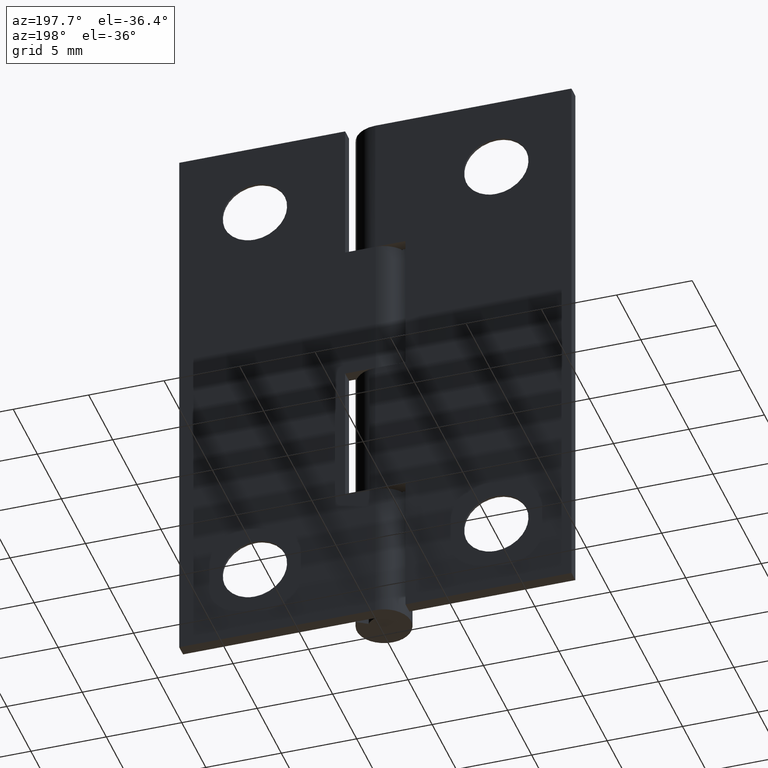
[diagram: clean part render]
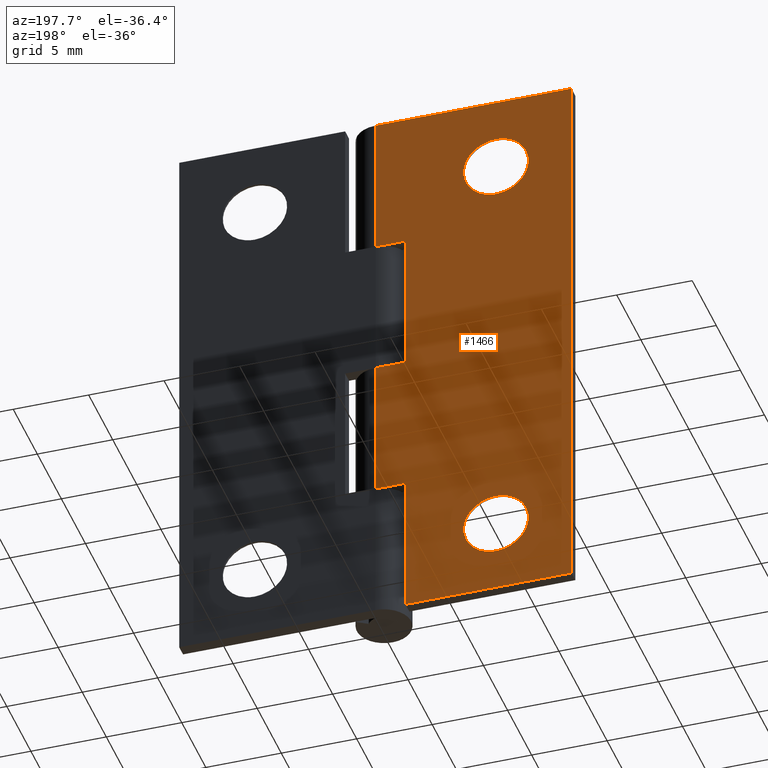
[diagram: same view with one face highlighted and labeled with its STEP entity id]
A machine part, auxiliary view. The second image highlights one B-rep face of the part: STEP entity #1466.
In plain terms, the highlighted face is a freeform B-spline surface patch.
Its self-contained STEP definition (entity closure, byte-faithful):
#534=CARTESIAN_POINT('',(-5.865029518324235,1.799999000000000,33.253773604563492));
#535=VERTEX_POINT('',#534);
#541=CARTESIAN_POINT('',(-8.0,1.799999000000000,30.850000000000001));
#542=VERTEX_POINT('',#541);
#543=CARTESIAN_POINT('',(-5.865029518324235,1.799999000000001,33.253773604563499));
#544=CARTESIAN_POINT('',(-5.850000000000001,1.799999000000000,33.127331857303616));
#545=CARTESIAN_POINT('',(-5.850000000000001,1.799999000000000,33.0));
#546=CARTESIAN_POINT('',(-5.850000000000001,1.799999000000000,30.850000000000001));
#547=CARTESIAN_POINT('',(-8.0,1.799999000000000,30.850000000000001));
#555=(BOUNDED_CURVE()B_SPLINE_CURVE(2,(#543,#544,#545,#546,#547),.UNSPECIFIED.,.F.,.U.)B_SPLINE_CURVE_WITH_KNOTS((3,2,3),(0.229562473507497,0.250000000000000,0.500000000000000),.UNSPECIFIED.)CURVE()GEOMETRIC_REPRESENTATION_ITEM()RATIONAL_B_SPLINE_CURVE((0.956026754171916,0.976055948324102,1.0,0.707106781186547,1.0))REPRESENTATION_ITEM(''));
#556=EDGE_CURVE('',#535,#542,#555,.T.);
#558=CARTESIAN_POINT('',(-10.145989816604599,1.799999000000000,32.868745639960650));
#559=VERTEX_POINT('',#558);
#560=CARTESIAN_POINT('',(-8.0,1.799999000000000,30.850000000000001));
#561=CARTESIAN_POINT('',(-10.022518043772834,1.799999000000000,30.850000000000005));
#562=CARTESIAN_POINT('',(-10.145989816604601,1.799999000000001,32.868745639960650));
#570=(BOUNDED_CURVE()B_SPLINE_CURVE(2,(#560,#561,#562),.UNSPECIFIED.,.F.,.U.)B_SPLINE_CURVE_WITH_KNOTS((3,3),(0.500000000000000,0.739332962235632),.UNSPECIFIED.)CURVE()GEOMETRIC_REPRESENTATION_ITEM()RATIONAL_B_SPLINE_CURVE((1.0,0.719603993290589,0.976072041659622))REPRESENTATION_ITEM(''));
#571=EDGE_CURVE('',#542,#559,#570,.T.);
#605=CARTESIAN_POINT('',(-8.0,1.799999000000000,35.149999999999999));
#606=VERTEX_POINT('',#605);
#607=CARTESIAN_POINT('',(-10.145989816604601,1.799999000000001,32.868745639960650));
#608=CARTESIAN_POINT('',(-10.150000000000002,1.799999000000000,32.934311558868515));
#609=CARTESIAN_POINT('',(-10.150000000000000,1.799999000000000,33.0));
#610=CARTESIAN_POINT('',(-10.149999999999999,1.799999000000000,35.149999999999999));
#611=CARTESIAN_POINT('',(-8.0,1.799999000000000,35.149999999999999));
#619=(BOUNDED_CURVE()B_SPLINE_CURVE(2,(#607,#608,#609,#610,#611),.UNSPECIFIED.,.F.,.U.)B_SPLINE_CURVE_WITH_KNOTS((3,2,3),(0.739332962235631,0.750000000000000,1.0),.UNSPECIFIED.)CURVE()GEOMETRIC_REPRESENTATION_ITEM()RATIONAL_B_SPLINE_CURVE((0.976072041659620,0.987502787895957,1.0,0.707106781186547,1.0))REPRESENTATION_ITEM(''));
#620=EDGE_CURVE('',#559,#606,#619,.T.);
#622=CARTESIAN_POINT('',(-8.0,1.799999000000000,35.149999999999999));
#623=CARTESIAN_POINT('',(-6.090424769297270,1.799999000000001,35.150000000000006));
#624=CARTESIAN_POINT('',(-5.865029518324235,1.799999000000000,33.253773604563492));
#632=(BOUNDED_CURVE()B_SPLINE_CURVE(2,(#622,#623,#624),.UNSPECIFIED.,.F.,.U.)B_SPLINE_CURVE_WITH_KNOTS((3,3),(0.0,0.229562473507496),.UNSPECIFIED.)CURVE()GEOMETRIC_REPRESENTATION_ITEM()RATIONAL_B_SPLINE_CURVE((1.0,0.731050832862446,0.956026754171916))REPRESENTATION_ITEM(''));
#633=EDGE_CURVE('',#606,#535,#632,.T.);
#878=CARTESIAN_POINT('',(-5.865029518324235,1.799999000000000,5.253773604563492));
#879=VERTEX_POINT('',#878);
#885=CARTESIAN_POINT('',(-8.0,1.799999000000000,2.850000000000000));
#886=VERTEX_POINT('',#885);
#887=CARTESIAN_POINT('',(-5.865029518324235,1.799999000000000,5.253773604563493));
#888=CARTESIAN_POINT('',(-5.850000000000001,1.799999000000000,5.127331857303612));
#889=CARTESIAN_POINT('',(-5.850000000000001,1.799999000000000,5.0));
#890=CARTESIAN_POINT('',(-5.850000000000001,1.799999000000000,2.850000000000000));
#891=CARTESIAN_POINT('',(-8.0,1.799999000000000,2.850000000000000));
#899=(BOUNDED_CURVE()B_SPLINE_CURVE(2,(#887,#888,#889,#890,#891),.UNSPECIFIED.,.F.,.U.)B_SPLINE_CURVE_WITH_KNOTS((3,2,3),(0.229562473507497,0.250000000000000,0.500000000000000),.UNSPECIFIED.)CURVE()GEOMETRIC_REPRESENTATION_ITEM()RATIONAL_B_SPLINE_CURVE((0.956026754171917,0.976055948324102,1.0,0.707106781186547,1.0))REPRESENTATION_ITEM(''));
#900=EDGE_CURVE('',#879,#886,#899,.T.);
#902=CARTESIAN_POINT('',(-10.145989816604599,1.799999000000001,4.868745639960645));
#903=VERTEX_POINT('',#902);
#904=CARTESIAN_POINT('',(-8.0,1.799999000000000,2.850000000000000));
#905=CARTESIAN_POINT('',(-10.022518043772807,1.799999000000001,2.849999999999999));
#906=CARTESIAN_POINT('',(-10.145989816604603,1.799999000000000,4.868745639960645));
#914=(BOUNDED_CURVE()B_SPLINE_CURVE(2,(#904,#905,#906),.UNSPECIFIED.,.F.,.U.)B_SPLINE_CURVE_WITH_KNOTS((3,3),(0.500000000000000,0.739332962235630),.UNSPECIFIED.)CURVE()GEOMETRIC_REPRESENTATION_ITEM()RATIONAL_B_SPLINE_CURVE((1.0,0.719603993290591,0.976072041659617))REPRESENTATION_ITEM(''));
#915=EDGE_CURVE('',#886,#903,#914,.T.);
#949=CARTESIAN_POINT('',(-8.0,1.799999000000000,7.150000000000000));
#950=VERTEX_POINT('',#949);
#951=CARTESIAN_POINT('',(-10.145989816604603,1.799999000000001,4.868745639960645));
#952=CARTESIAN_POINT('',(-10.149999999999999,1.799999000000000,4.934311558868512));
#953=CARTESIAN_POINT('',(-10.150000000000000,1.799999000000000,5.0));
#954=CARTESIAN_POINT('',(-10.149999999999999,1.799999000000000,7.150000000000003));
#955=CARTESIAN_POINT('',(-8.0,1.799999000000000,7.150000000000000));
#963=(BOUNDED_CURVE()B_SPLINE_CURVE(2,(#951,#952,#953,#954,#955),.UNSPECIFIED.,.F.,.U.)B_SPLINE_CURVE_WITH_KNOTS((3,2,3),(0.739332962235631,0.750000000000000,1.0),.UNSPECIFIED.)CURVE()GEOMETRIC_REPRESENTATION_ITEM()RATIONAL_B_SPLINE_CURVE((0.976072041659619,0.987502787895957,1.0,0.707106781186547,1.0))REPRESENTATION_ITEM(''));
#964=EDGE_CURVE('',#903,#950,#963,.T.);
#966=CARTESIAN_POINT('',(-8.0,1.799999000000000,7.150000000000000));
#967=CARTESIAN_POINT('',(-6.090424769297265,1.799999000000001,7.150000000000001));
#968=CARTESIAN_POINT('',(-5.865029518324235,1.799999000000000,5.253773604563493));
#976=(BOUNDED_CURVE()B_SPLINE_CURVE(2,(#966,#967,#968),.UNSPECIFIED.,.F.,.U.)B_SPLINE_CURVE_WITH_KNOTS((3,3),(0.0,0.229562473507497),.UNSPECIFIED.)CURVE()GEOMETRIC_REPRESENTATION_ITEM()RATIONAL_B_SPLINE_CURVE((1.0,0.731050832862445,0.956026754171917))REPRESENTATION_ITEM(''));
#977=EDGE_CURVE('',#950,#879,#976,.T.);
#988=CARTESIAN_POINT('',(-2.0,1.799998999999940,19.0));
#989=VERTEX_POINT('',#988);
#997=CARTESIAN_POINT('',(-2.0,1.799998999999940,28.500000000000000));
#998=VERTEX_POINT('',#997);
#999=CARTESIAN_POINT('',(-2.0,1.799998999999940,19.0));
#1000=CARTESIAN_POINT('',(-2.0,1.799998999999940,28.500000000000000));
#1001=QUASI_UNIFORM_CURVE('',1,(#999,#1000),.UNSPECIFIED.,.F.,.U.);
#1002=EDGE_CURVE('',#989,#998,#1001,.T.);
#1024=CARTESIAN_POINT('',(0.001897366339662,1.799998999999940,19.0));
#1025=VERTEX_POINT('',#1024);
#1026=CARTESIAN_POINT('',(0.001897366339662,1.799998999999940,19.0));
#1027=CARTESIAN_POINT('',(-2.0,1.799998999999940,19.0));
#1028=QUASI_UNIFORM_CURVE('',1,(#1026,#1027),.UNSPECIFIED.,.F.,.U.);
#1029=EDGE_CURVE('',#1025,#989,#1028,.T.);
#1096=CARTESIAN_POINT('',(0.001897366339662,1.799998999999940,28.500000000000000));
#1097=VERTEX_POINT('',#1096);
#1151=CARTESIAN_POINT('',(-2.0,1.799998999999940,28.500000000000000));
#1152=CARTESIAN_POINT('',(0.001897366339662,1.799998999999940,28.500000000000000));
#1153=QUASI_UNIFORM_CURVE('',1,(#1151,#1152),.UNSPECIFIED.,.F.,.U.);
#1154=EDGE_CURVE('',#998,#1097,#1153,.T.);
#1164=CARTESIAN_POINT('',(-2.0,1.799998999999940,0.0));
#1165=VERTEX_POINT('',#1164);
#1173=CARTESIAN_POINT('',(-2.0,1.799998999999940,9.499999999999901));
#1174=VERTEX_POINT('',#1173);
#1175=CARTESIAN_POINT('',(-2.0,1.799998999999940,0.0));
#1176=CARTESIAN_POINT('',(-2.0,1.799998999999940,9.499999999999901));
#1177=QUASI_UNIFORM_CURVE('',1,(#1175,#1176),.UNSPECIFIED.,.F.,.U.);
#1178=EDGE_CURVE('',#1165,#1174,#1177,.T.);
#1202=CARTESIAN_POINT('',(0.001897366339662,1.799998999999940,9.499999999999901));
#1203=VERTEX_POINT('',#1202);
#1257=CARTESIAN_POINT('',(-2.0,1.799998999999940,9.499999999999901));
#1258=CARTESIAN_POINT('',(0.001897366339662,1.799998999999940,9.499999999999901));
#1259=QUASI_UNIFORM_CURVE('',1,(#1257,#1258),.UNSPECIFIED.,.F.,.U.);
#1260=EDGE_CURVE('',#1174,#1203,#1259,.T.);
#1300=CARTESIAN_POINT('',(0.001897366339662,1.799999000000000,37.999992999999897));
#1301=VERTEX_POINT('',#1300);
#1321=CARTESIAN_POINT('',(-13.0,1.799999000000000,37.999992999999897));
#1322=VERTEX_POINT('',#1321);
#1323=CARTESIAN_POINT('',(-13.0,1.799999000000000,37.999992999999897));
#1324=CARTESIAN_POINT('',(0.001897366339662,1.799999000000000,37.999992999999897));
#1325=QUASI_UNIFORM_CURVE('',1,(#1323,#1324),.UNSPECIFIED.,.F.,.U.);
#1326=EDGE_CURVE('',#1322,#1301,#1325,.T.);
#1350=CARTESIAN_POINT('',(-13.0,1.799999000000000,0.0));
#1351=VERTEX_POINT('',#1350);
#1363=CARTESIAN_POINT('',(-13.0,1.799999000000000,37.999992999999897));
#1364=CARTESIAN_POINT('',(-13.0,1.799999000000000,0.0));
#1365=QUASI_UNIFORM_CURVE('',1,(#1363,#1364),.UNSPECIFIED.,.F.,.U.);
#1366=EDGE_CURVE('',#1322,#1351,#1365,.T.);
#1376=CARTESIAN_POINT('',(-13.0,1.799999000000000,0.0));
#1377=CARTESIAN_POINT('',(-2.0,1.799998999999940,0.0));
#1378=QUASI_UNIFORM_CURVE('',1,(#1376,#1377),.UNSPECIFIED.,.F.,.U.);
#1379=EDGE_CURVE('',#1351,#1165,#1378,.T.);
#1429=CARTESIAN_POINT('',(-13.649444748248470,1.799999000000000,-1.898099440935968));
#1430=CARTESIAN_POINT('',(-13.649444748248470,1.799999000000000,39.898090742203813));
#1431=CARTESIAN_POINT('',(0.651342463326190,1.799999000000000,-1.898099440935968));
#1432=CARTESIAN_POINT('',(0.651342463326190,1.799999000000000,39.898090742203813));
#1433=B_SPLINE_SURFACE_WITH_KNOTS('',1,1,((#1429,#1431),(#1430,#1432)),.UNSPECIFIED.,.F.,.F.,.U.,(2,2),(2,2),(0.0,41.796190183139778),(0.0,14.300787211574660),.UNSPECIFIED.);
#1434=CARTESIAN_POINT('',(0.001897366339662,1.799999000000000,37.999992999999897));
#1435=CARTESIAN_POINT('',(0.001897366339662,1.799998999999940,28.500000000000000));
#1436=QUASI_UNIFORM_CURVE('',1,(#1434,#1435),.UNSPECIFIED.,.F.,.U.);
#1437=EDGE_CURVE('',#1301,#1097,#1436,.T.);
#1438=ORIENTED_EDGE('',*,*,#1437,.T.);
#1439=ORIENTED_EDGE('',*,*,#1154,.F.);
#1440=ORIENTED_EDGE('',*,*,#1002,.F.);
#1441=ORIENTED_EDGE('',*,*,#1029,.F.);
#1442=CARTESIAN_POINT('',(0.001897366339662,1.799998999999940,19.0));
#1443=CARTESIAN_POINT('',(0.001897366339662,1.799998999999940,9.499999999999901));
#1444=QUASI_UNIFORM_CURVE('',1,(#1442,#1443),.UNSPECIFIED.,.F.,.U.);
#1445=EDGE_CURVE('',#1025,#1203,#1444,.T.);
#1446=ORIENTED_EDGE('',*,*,#1445,.T.);
#1447=ORIENTED_EDGE('',*,*,#1260,.F.);
#1448=ORIENTED_EDGE('',*,*,#1178,.F.);
#1449=ORIENTED_EDGE('',*,*,#1379,.F.);
#1450=ORIENTED_EDGE('',*,*,#1366,.F.);
#1451=ORIENTED_EDGE('',*,*,#1326,.T.);
#1452=EDGE_LOOP('',(#1438,#1439,#1440,#1441,#1446,#1447,#1448,#1449,#1450,#1451));
#1453=FACE_OUTER_BOUND('',#1452,.T.);
#1454=ORIENTED_EDGE('',*,*,#915,.F.);
#1455=ORIENTED_EDGE('',*,*,#900,.F.);
#1456=ORIENTED_EDGE('',*,*,#977,.F.);
#1457=ORIENTED_EDGE('',*,*,#964,.F.);
#1458=EDGE_LOOP('',(#1454,#1455,#1456,#1457));
#1459=FACE_BOUND('',#1458,.T.);
#1460=ORIENTED_EDGE('',*,*,#571,.F.);
#1461=ORIENTED_EDGE('',*,*,#556,.F.);
#1462=ORIENTED_EDGE('',*,*,#633,.F.);
#1463=ORIENTED_EDGE('',*,*,#620,.F.);
#1464=EDGE_LOOP('',(#1460,#1461,#1462,#1463));
#1465=FACE_BOUND('',#1464,.T.);
#1466=ADVANCED_FACE('',(#1453,#1459,#1465),#1433,.T.);